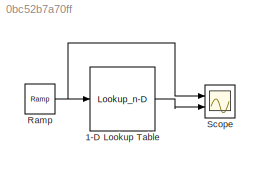
MODEL slx_0bc52b7a70ff
KIND model
CONFIG AbsTol = auto
CONFIG EnableMultiTasking = off
CONFIG FixedStep = auto
CONFIG MaxStep = auto
CONFIG MinStep = auto
CONFIG RelTol = 1e-3
CONFIG SampleTimeConstraint = Unconstrained
CONFIG SolverName = VariableStepAuto
CONFIG StartTime = 0.0
CONFIG StopTime = 10.0
BLOCK [Lookup_n-D] 1-D Lookup Table
  BreakpointsForDimension1 = [[-20.7,-19.7,-14.7,-12.9,-7,-4.2,-1.931,-0.58,-0.243,-0.148,-0.095,-0.077,-0.046,-0.035,-0.033,-0.031,-0.029,-0.028,-0.024,-0.023,-0.012,-0.010,-0.009,-0.008,-0.005,-0.003,-0.001,0.001,0.009,0.060,0.101,0.175,0.246,0.412,0.646,0.822,1.112,1.805,2.007,2.392,3.4,3.9,4.3,5.3,6.7,7.6,8.0]]
  InputPortMap = u0
  InternalRulePriority = Speed
  NumberOfTableDimensions = 1
  Ports = [1, 1]
  RndMeth = Simplest
  Table = tanh([6.367,-6.36,-6.35,-6.34,-6.33,-6.32,-6.31,-6.3,-6.28,-6.26,-6.23,-6.21,-6.15,-6.11,-6.09,-6.08,-6.07,-6.06,-6.03,-6.01,-5,-4,-3,-2,-1.620,0.283,0.37,0.425,0.445,0.485,0.503,0.525,0.538,0.555,0.573,0.585,0.598,0.618,0.623,0.63,0.646,0.653,0.658,0.665,0.672,0.677,0.680])
BLOCK [Reference] Ramp  REF=simulink/Sources/Ramp
  Ports = [0, 1]
  SourceBlock = simulink/Sources/Ramp
  SourceProductBaseCode = SL
  SourceType = Ramp
BLOCK [Scope] Scope
  Floating = off
  NumInputPorts = 2
  Ports = [2]
  ScopeSpecificationString = Simulink.scopes.TimeScopeBlockCfg('CurrentConfiguration', extmgr.ConfigurationSet(extmgr.Configuration('Core','General UI',true),extmgr.Configuration('Core','Source UI',true),extmgr.Configuration('Sources','WiredSimulink',true),extmgr.Configuration('Visuals','Time Domain',true,'SerializedDisplays',{struct('MinYLimReal','-1.25','MaxYLimReal','11.25','YLabelReal','','MinYLimMag','0.00000','MaxYLimMa...<+1991ch>
LINE 1-D Lookup Table:1 -> Scope:2
NET Ramp:1 -> 1-D Lookup Table:1, Scope:1
note: NET lines group one-source signal fan-out (src -> all destinations, sorted); 1:1 wires keep LINE
